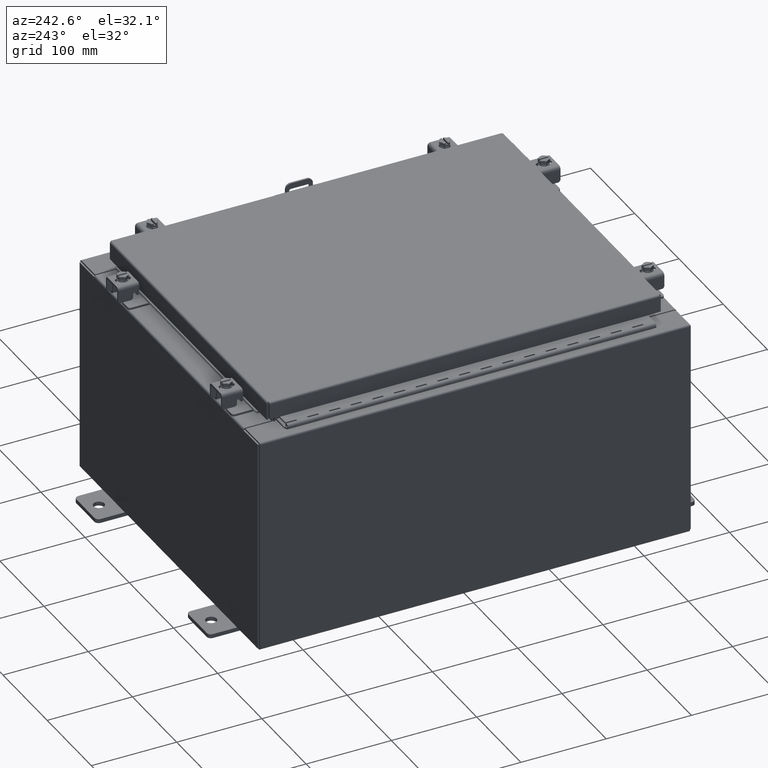
[diagram: clean part render]
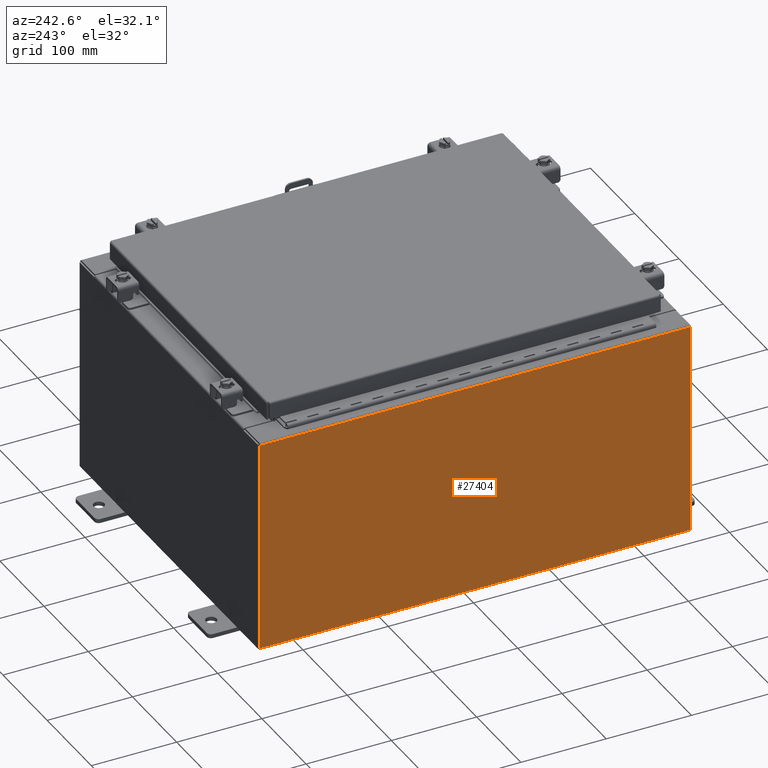
[diagram: same view with one face highlighted and labeled with its STEP entity id]
A machine part, auxiliary view. The second image highlights one B-rep face of the part: STEP entity #27404.
In plain terms, the highlighted planar face has unit normal (1, 0, 0).
Its self-contained STEP definition (entity closure, byte-faithful):
#25 = VECTOR ( 'NONE', #11255, 39.37007874015748100 ) ;
#1738 = LINE ( 'NONE', #26902, #13150 ) ;
#2005 = CARTESIAN_POINT ( 'NONE',  ( -8.000000000000032000, -9.925300000000000000, 9.837599999999998300 ) ) ;
#2415 = PLANE ( 'NONE',  #7624 ) ;
#3358 = CARTESIAN_POINT ( 'NONE',  ( -7.999999999999997300, -9.925300000000001800, -2.844547654289867700E-014 ) ) ;
#4386 = CARTESIAN_POINT ( 'NONE',  ( -7.999999999999997300, 9.925299999999998200, 0.01299999999999984700 ) ) ;
#6076 = LINE ( 'NONE', #8989, #25 ) ;
#6509 = VECTOR ( 'NONE', #13540, 39.37007874015748100 ) ;
#7107 = ORIENTED_EDGE ( 'NONE', *, *, #26953, .T. ) ;
#7161 = ORIENTED_EDGE ( 'NONE', *, *, #24696, .F. ) ;
#7624 = AXIS2_PLACEMENT_3D ( 'NONE', #25189, #27479, #13876 ) ;
#8236 = VECTOR ( 'NONE', #14723, 39.37007874015748100 ) ;
#8765 = CARTESIAN_POINT ( 'NONE',  ( -8.000000000000032000, 9.925299999999998200, 9.837599999999998300 ) ) ;
#8989 = CARTESIAN_POINT ( 'NONE',  ( -8.000000000000032000, -9.925300000000001800, 9.837599999999998300 ) ) ;
#9124 = CARTESIAN_POINT ( 'NONE',  ( -7.999999999999997300, 9.925299999999998200, 0.01299999999999984300 ) ) ;
#11255 = DIRECTION ( 'NONE',  ( 0.0000000000000000000, 1.000000000000000000, 0.0000000000000000000 ) ) ;
#12290 = ORIENTED_EDGE ( 'NONE', *, *, #27806, .T. ) ;
#13150 = VECTOR ( 'NONE', #29198, 39.37007874015748100 ) ;
#13540 = DIRECTION ( 'NONE',  ( -0.0000000000000000000, 1.000000000000000000, -0.0000000000000000000 ) ) ;
#13876 = DIRECTION ( 'NONE',  ( 3.523082860860887800E-015, 0.0000000000000000000, -1.000000000000000000 ) ) ;
#14293 = LINE ( 'NONE', #3358, #8236 ) ;
#14723 = DIRECTION ( 'NONE',  ( -3.523082860860888200E-015, 0.0000000000000000000, 1.000000000000000000 ) ) ;
#15005 = EDGE_LOOP ( 'NONE', ( #12290, #24641, #7161, #7107 ) ) ;
#18879 = VERTEX_POINT ( 'NONE', #9124 ) ;
#19496 = VERTEX_POINT ( 'NONE', #29459 ) ;
#21573 = VERTEX_POINT ( 'NONE', #8765 ) ;
#24641 = ORIENTED_EDGE ( 'NONE', *, *, #28998, .T. ) ;
#24696 = EDGE_CURVE ( 'NONE', #19496, #18879, #25357, .T. ) ;
#25189 = CARTESIAN_POINT ( 'NONE',  ( -7.999999999999997300, 0.0000000000000000000, -2.844547654289867700E-014 ) ) ;
#25357 = LINE ( 'NONE', #4386, #6509 ) ;
#26902 = CARTESIAN_POINT ( 'NONE',  ( -7.999999999999997300, 9.925299999999998200, -2.844547654289867700E-014 ) ) ;
#26953 = EDGE_CURVE ( 'NONE', #19496, #27768, #14293, .T. ) ;
#27046 = FACE_OUTER_BOUND ( 'NONE', #15005, .T. ) ;
#27404 = ADVANCED_FACE ( 'NONE', ( #27046 ), #2415, .F. ) ;
#27479 = DIRECTION ( 'NONE',  ( 1.000000000000000000, 0.0000000000000000000, 3.523082860860887800E-015 ) ) ;
#27768 = VERTEX_POINT ( 'NONE', #2005 ) ;
#27806 = EDGE_CURVE ( 'NONE', #27768, #21573, #6076, .T. ) ;
#28998 = EDGE_CURVE ( 'NONE', #21573, #18879, #1738, .T. ) ;
#29198 = DIRECTION ( 'NONE',  ( 3.523082860860888200E-015, 0.0000000000000000000, -1.000000000000000000 ) ) ;
#29459 = CARTESIAN_POINT ( 'NONE',  ( -7.999999999999997300, -9.925300000000000000, 0.01299999999999984700 ) ) ;